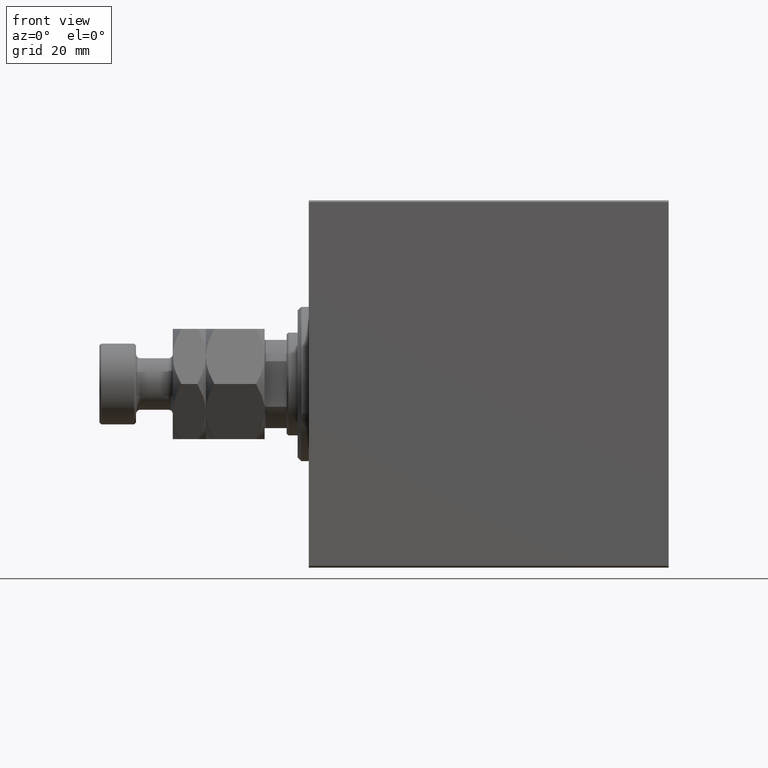
[diagram: clean part render]
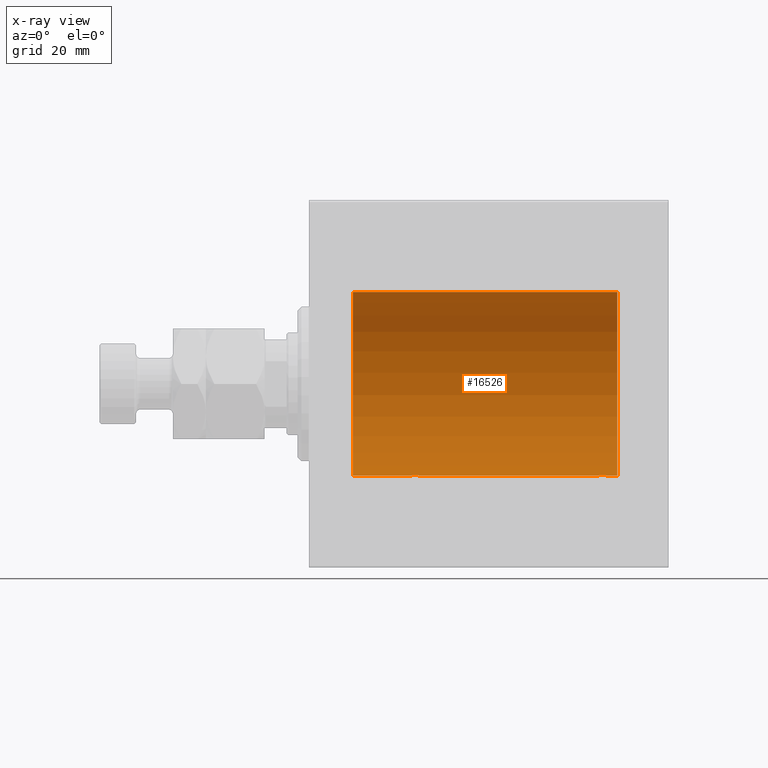
[diagram: x-ray — body ghosted, one internal face saturated and labeled with its STEP entity id]
A machine part, front view, then the same camera in x-ray: the body is ghosted and one INTERNAL B-rep face — a face not visible from any outside direction — is saturated and labeled: STEP entity #16526.
In plain terms, the highlighted cylindrical surface (partial cylindrical patch) has radius 25 mm, axis along (-1, -0, -0).
Its self-contained STEP definition (entity closure, byte-faithful):
#734 = VERTEX_POINT ( 'NONE', #41203 ) ;
#1446 = CARTESIAN_POINT ( 'NONE',  ( 77.75348321179131972, 1.109060198064595548, -24.97584694923137505 ) ) ;
#1668 = CARTESIAN_POINT ( 'NONE',  ( 80.80463913299813328, 2.372637051600627878, -24.88723676875458679 ) ) ;
#1895 = CARTESIAN_POINT ( 'NONE',  ( 79.35083484000675469, 2.419847904056434462, -24.88263203448060423 ) ) ;
#2258 = EDGE_LOOP ( 'NONE', ( #29185, #19840, #42174, #20259, #5530, #35871, #33357, #22043 ) ) ;
#2446 = B_SPLINE_CURVE_WITH_KNOTS ( 'NONE', 3,
 ( #27105, #15765, #20159, #37079, #41004, #1446, #44468, #9517, #29676, #26659, #19475, #43776, #12061, #44005, #1895, #26191, #15998, #9285, #40328, #8612, #1668, #37301, #37532, #5822, #41695, #21083, #17152, #24777, #38474, #34535, #6751, #44927, #42376, #23866 ),
 .UNSPECIFIED., .F., .F.,
 ( 4, 2, 2, 2, 2, 2, 2, 2, 2, 2, 2, 2, 2, 2, 2, 2, 4 ),
 ( 2.479143365900102323E-19, 0.0004888140276038942808, 0.0009776280552077883448, 0.001466442082811682300, 0.001955256110415576690, 0.002444070138019470862, 0.002932884165623364601, 0.003421698193227258773, 0.003910512220831152512, 0.004399326248435046251, 0.004888140276038940857, 0.005376954303642834596, 0.005865768331246728334, 0.006354582358850622940, 0.006843396386454516679, 0.007332210414058411285, 0.007821024441662305024 ),
 .UNSPECIFIED. ) ;
#3011 = CARTESIAN_POINT ( 'NONE',  ( 30.98758834612092983, 1.525124164792372561, -24.95380474534676907 ) ) ;
#3230 = CARTESIAN_POINT ( 'NONE',  ( 31.16861818252479921, 1.254434665533507687, -24.96887599906795785 ) ) ;
#3459 = CARTESIAN_POINT ( 'NONE',  ( 26.50000000000000355, 0.1652919547268403011, -25.00000000000000711 ) ) ;
#3558 = VECTOR ( 'NONE', #29539, 1000.000000000000000 ) ;
#4239 = EDGE_CURVE ( 'NONE', #5942, #30397, #9176, .T. ) ;
#4330 = CIRCLE ( 'NONE', #30217, 25.00000000000000000 ) ;
#5530 = ORIENTED_EDGE ( 'NONE', *, *, #40091, .F. ) ;
#5822 = CARTESIAN_POINT ( 'NONE',  ( 81.52450344187180065, 1.988066470813644182, -24.92099187803979987 ) ) ;
#5942 = VERTEX_POINT ( 'NONE', #21436 ) ;
#6643 = VECTOR ( 'NONE', #42683, 1000.000000000000000 ) ;
#6715 = CARTESIAN_POINT ( 'NONE',  ( 31.50000000000000711, 0.1632133729155560153, -25.00000000000000355 ) ) ;
#6751 = CARTESIAN_POINT ( 'NONE',  ( 82.41966436084116765, 0.6495680347195872395, -24.99207398768918864 ) ) ;
#6934 = CARTESIAN_POINT ( 'NONE',  ( 28.83592030623262659, 2.499940606140140797, -24.87469189697262095 ) ) ;
#7116 = CARTESIAN_POINT ( 'NONE',  ( 84.00000000000000000, 3.061616997868382254E-15, -25.00000000000000000 ) ) ;
#7159 = CARTESIAN_POINT ( 'NONE',  ( 26.50000000000000355, -1.030486103406027476E-15, -25.00000000000000000 ) ) ;
#8113 = EDGE_CURVE ( 'NONE', #20990, #34215, #30083, .T. ) ;
#8452 = AXIS2_PLACEMENT_3D ( 'NONE', #13217, #30139, #9287 ) ;
#8612 = CARTESIAN_POINT ( 'NONE',  ( 80.64874342732643697, 2.419890192637117021, -24.88262770889312847 ) ) ;
#9176 = CIRCLE ( 'NONE', #8452, 25.00000000000000000 ) ;
#9285 = CARTESIAN_POINT ( 'NONE',  ( 80.16226476613384477, 2.500059064463608038, -24.87467999146395314 ) ) ;
#9287 = DIRECTION ( 'NONE',  ( 0.000000000000000000, 0.000000000000000000, 1.000000000000000000 ) ) ;
#9517 = CARTESIAN_POINT ( 'NONE',  ( 78.01175333178062488, 1.524323445682830958, -24.95385641887458661 ) ) ;
#9939 = CARTESIAN_POINT ( 'NONE',  ( 29.64874342732638368, 2.419890192637123683, -24.88262770889313913 ) ) ;
#10130 = LINE ( 'NONE', #7116, #42084 ) ;
#10173 = CARTESIAN_POINT ( 'NONE',  ( 31.50000000000000000, 3.061616978460191625E-15, -25.00000000000000000 ) ) ;
#12061 = CARTESIAN_POINT ( 'NONE',  ( 78.89234004476098505, 2.247131495942870316, -24.89888190765473297 ) ) ;
#13217 = CARTESIAN_POINT ( 'NONE',  ( 11.99999999999999645, 0.000000000000000000, 0.000000000000000000 ) ) ;
#13414 = CARTESIAN_POINT ( 'NONE',  ( 30.52450344187178644, 1.988066470813645514, -24.92099187803979987 ) ) ;
#13637 = CARTESIAN_POINT ( 'NONE',  ( 26.57980964520840672, 0.6474866336855760185, -24.99212517028518121 ) ) ;
#13869 = CARTESIAN_POINT ( 'NONE',  ( 27.34785002149174815, 1.883339088673198214, -24.92922739080161065 ) ) ;
#13873 = DIRECTION ( 'NONE',  ( -1.000000000000000000, 0.000000000000000000, 0.000000000000000000 ) ) ;
#13903 = CARTESIAN_POINT ( 'NONE',  ( 26.50000000000000355, -1.030486103406027476E-15, -25.00000000000000000 ) ) ;
#14098 = CARTESIAN_POINT ( 'NONE',  ( 29.16226476613383056, 2.500059064463610703, -24.87467999146394959 ) ) ;
#15311 = FACE_OUTER_BOUND ( 'NONE', #2258, .T. ) ;
#15406 = CARTESIAN_POINT ( 'NONE',  ( 84.00000000000000000, 0.000000000000000000, 25.00000000000000000 ) ) ;
#15765 = CARTESIAN_POINT ( 'NONE',  ( 77.50000000000000000, 0.1652919547268409395, -25.00000000000000711 ) ) ;
#15998 = CARTESIAN_POINT ( 'NONE',  ( 79.83592030623263724, 2.499940606140138133, -24.87469189697262095 ) ) ;
#16123 = VECTOR ( 'NONE', #20195, 1000.000000000000000 ) ;
#16526 = ADVANCED_FACE ( 'NONE', ( #15311 ), #36399, .F. ) ;
#17117 = CARTESIAN_POINT ( 'NONE',  ( 28.67362550772655894, 2.484060984458447141, -24.87630362147113772 ) ) ;
#17152 = CARTESIAN_POINT ( 'NONE',  ( 81.98758834612091562, 1.525124164792374115, -24.95380474534676907 ) ) ;
#17565 = CARTESIAN_POINT ( 'NONE',  ( 26.51623131730843141, 0.3278008924763859966, -24.99836206720143750 ) ) ;
#17701 = LINE ( 'NONE', #28343, #6643 ) ;
#19475 = CARTESIAN_POINT ( 'NONE',  ( 78.47366496487659049, 1.986787236855545036, -24.92109717386378165 ) ) ;
#19840 = ORIENTED_EDGE ( 'NONE', *, *, #39109, .F. ) ;
#20159 = CARTESIAN_POINT ( 'NONE',  ( 77.51623131730845273, 0.3278008924763873844, -24.99836206720143750 ) ) ;
#20195 = DIRECTION ( 'NONE',  ( -1.000000000000000000, -0.000000000000000000, -0.000000000000000000 ) ) ;
#20259 = ORIENTED_EDGE ( 'NONE', *, *, #4239, .T. ) ;
#20506 = AXIS2_PLACEMENT_3D ( 'NONE', #22721, #35936, #44008 ) ;
#20591 = CARTESIAN_POINT ( 'NONE',  ( 30.65075206354793380, 1.884745564839657828, -24.92912799315484662 ) ) ;
#20758 = CARTESIAN_POINT ( 'NONE',  ( 82.50000000000001421, 3.061616978466502512E-15, -25.00000000000000000 ) ) ;
#20825 = CARTESIAN_POINT ( 'NONE',  ( 28.35083484000673693, 2.419847904056438459, -24.88263203448060423 ) ) ;
#20990 = VERTEX_POINT ( 'NONE', #13903 ) ;
#21083 = CARTESIAN_POINT ( 'NONE',  ( 81.88423301929988440, 1.651337078997087593, -24.94567646296264485 ) ) ;
#21271 = CARTESIAN_POINT ( 'NONE',  ( 26.75348321179130195, 1.109060198064592440, -24.97584694923138215 ) ) ;
#21436 = CARTESIAN_POINT ( 'NONE',  ( 11.99999999999999645, 0.000000000000000000, 25.00000000000000000 ) ) ;
#22043 = ORIENTED_EDGE ( 'NONE', *, *, #28382, .T. ) ;
#22721 = CARTESIAN_POINT ( 'NONE',  ( 84.00000000000000000, 0.000000000000000000, 0.000000000000000000 ) ) ;
#22791 = EDGE_CURVE ( 'NONE', #734, #5942, #39965, .T. ) ;
#23660 = CARTESIAN_POINT ( 'NONE',  ( 31.24692376408954075, 1.108237982093038587, -24.97588368351298627 ) ) ;
#23828 = CARTESIAN_POINT ( 'NONE',  ( 27.74695886470063400, 2.169541443998013630, -24.90585268157804677 ) ) ;
#23866 = CARTESIAN_POINT ( 'NONE',  ( 82.50000000000001421, 3.061616978466502512E-15, -25.00000000000000000 ) ) ;
#23896 = LINE ( 'NONE', #44963, #16123 ) ;
#24518 = CARTESIAN_POINT ( 'NONE',  ( 30.25371533481192543, 2.169035936979791135, -24.90589343070811168 ) ) ;
#24777 = CARTESIAN_POINT ( 'NONE',  ( 82.16861818252479566, 1.254434665533510129, -24.96887599906795785 ) ) ;
#26191 = CARTESIAN_POINT ( 'NONE',  ( 79.67362550772655538, 2.484060984458443588, -24.87630362147113772 ) ) ;
#26564 = VERTEX_POINT ( 'NONE', #28182 ) ;
#26659 = CARTESIAN_POINT ( 'NONE',  ( 78.34785002149173749, 1.883339088673193329, -24.92922739080161065 ) ) ;
#26973 = EDGE_CURVE ( 'NONE', #26564, #34215, #17701, .T. ) ;
#27105 = CARTESIAN_POINT ( 'NONE',  ( 77.50000000000001421, -1.022092533403706378E-15, -25.00000000000000000 ) ) ;
#27481 = CARTESIAN_POINT ( 'NONE',  ( 84.00000000000000000, 3.061616997868382254E-15, -25.00000000000000000 ) ) ;
#27709 = CARTESIAN_POINT ( 'NONE',  ( 11.99999999999999645, 3.061616997868382254E-15, -25.00000000000000000 ) ) ;
#27770 = CARTESIAN_POINT ( 'NONE',  ( 31.41966436084114989, 0.6495680347195871285, -24.99207398768918864 ) ) ;
#28004 = CARTESIAN_POINT ( 'NONE',  ( 27.47366496487658338, 1.986787236855548144, -24.92109717386378165 ) ) ;
#28008 = DIRECTION ( 'NONE',  ( 0.000000000000000000, 0.000000000000000000, 1.000000000000000000 ) ) ;
#28182 = CARTESIAN_POINT ( 'NONE',  ( 77.50000000000001421, -1.022092533403706378E-15, -25.00000000000000000 ) ) ;
#28225 = CARTESIAN_POINT ( 'NONE',  ( 29.32801772275002605, 2.483775543901343585, -24.87633190989611265 ) ) ;
#28343 = CARTESIAN_POINT ( 'NONE',  ( 84.00000000000000000, 3.061616997868382254E-15, -25.00000000000000000 ) ) ;
#28382 = EDGE_CURVE ( 'NONE', #26564, #29505, #2446, .T. ) ;
#29185 = ORIENTED_EDGE ( 'NONE', *, *, #37124, .F. ) ;
#29505 = VERTEX_POINT ( 'NONE', #20758 ) ;
#29539 = DIRECTION ( 'NONE',  ( -1.000000000000000000, -0.000000000000000000, -0.000000000000000000 ) ) ;
#29676 = CARTESIAN_POINT ( 'NONE',  ( 78.11730287024110453, 1.652881481536629948, -24.94556728625771669 ) ) ;
#30083 = B_SPLINE_CURVE_WITH_KNOTS ( 'NONE', 3,
 ( #7159, #3459, #17565, #13637, #34737, #21271, #37957, #31476, #44891, #13869, #28004, #23828, #35176, #34958, #20825, #17117, #6934, #14098, #28225, #9939, #45136, #41657, #24518, #13414, #20591, #31709, #3011, #3230, #23660, #31025, #27770, #42121, #6715, #10173 ),
 .UNSPECIFIED., .F., .F.,
 ( 4, 2, 2, 2, 2, 2, 2, 2, 2, 2, 2, 2, 2, 2, 2, 2, 4 ),
 ( 6.360548730919160171E-19, 0.0004888140276038948229, 0.0009776280552077889954, 0.001466442082811683168, 0.001955256110415577123, 0.002444070138019471296, 0.002932884165623365468, 0.003421698193227259641, 0.003910512220831154247, 0.004399326248435047985, 0.004888140276038942592, 0.005376954303642837198, 0.005865768331246730936, 0.006354582358850624675, 0.006843396386454519281, 0.007332210414058413887, 0.007821024441662306759 ),
 .UNSPECIFIED. ) ;
#30139 = DIRECTION ( 'NONE',  ( -1.000000000000000000, 0.000000000000000000, 0.000000000000000000 ) ) ;
#30217 = AXIS2_PLACEMENT_3D ( 'NONE', #31482, #13873, #28008 ) ;
#30397 = VERTEX_POINT ( 'NONE', #27709 ) ;
#30800 = VERTEX_POINT ( 'NONE', #27481 ) ;
#31025 = CARTESIAN_POINT ( 'NONE',  ( 31.37237109198581209, 0.8054273576766391995, -24.98748174524255461 ) ) ;
#31476 = CARTESIAN_POINT ( 'NONE',  ( 27.01175333178059290, 1.524323445682838285, -24.95385641887458661 ) ) ;
#31482 = CARTESIAN_POINT ( 'NONE',  ( 84.00000000000000000, 0.000000000000000000, 0.000000000000000000 ) ) ;
#31709 = CARTESIAN_POINT ( 'NONE',  ( 30.88423301929986664, 1.651337078997084484, -24.94567646296264485 ) ) ;
#31892 = DIRECTION ( 'NONE',  ( -1.000000000000000000, -0.000000000000000000, -0.000000000000000000 ) ) ;
#33357 = ORIENTED_EDGE ( 'NONE', *, *, #26973, .F. ) ;
#34215 = VERTEX_POINT ( 'NONE', #43655 ) ;
#34535 = CARTESIAN_POINT ( 'NONE',  ( 82.37237109198585472, 0.8054273576766400877, -24.98748174524255461 ) ) ;
#34737 = CARTESIAN_POINT ( 'NONE',  ( 26.62793608542407853, 0.8063280894284498013, -24.98745245851526064 ) ) ;
#34958 = CARTESIAN_POINT ( 'NONE',  ( 28.19316411112866660, 2.371819214216752680, -24.88731391344728294 ) ) ;
#35176 = CARTESIAN_POINT ( 'NONE',  ( 27.89234004476097439, 2.247131495942869872, -24.89888190765473297 ) ) ;
#35871 = ORIENTED_EDGE ( 'NONE', *, *, #8113, .T. ) ;
#35936 = DIRECTION ( 'NONE',  ( -1.000000000000000000, -0.000000000000000000, -0.000000000000000000 ) ) ;
#36399 = CYLINDRICAL_SURFACE ( 'NONE', #20506, 25.00000000000000000 ) ;
#37079 = CARTESIAN_POINT ( 'NONE',  ( 77.57980964520839962, 0.6474866336855770177, -24.99212517028518121 ) ) ;
#37124 = EDGE_CURVE ( 'NONE', #30800, #29505, #23896, .T. ) ;
#37301 = CARTESIAN_POINT ( 'NONE',  ( 81.10745236819801107, 2.247309494740953095, -24.89886665287248135 ) ) ;
#37532 = CARTESIAN_POINT ( 'NONE',  ( 81.25371533481192898, 2.169035936979788470, -24.90589343070811168 ) ) ;
#37957 = CARTESIAN_POINT ( 'NONE',  ( 26.83029543590130928, 1.252624798282894192, -24.96896960740658500 ) ) ;
#38474 = CARTESIAN_POINT ( 'NONE',  ( 82.24692376408954431, 1.108237982093040142, -24.97588368351298627 ) ) ;
#39109 = EDGE_CURVE ( 'NONE', #734, #30800, #4330, .T. ) ;
#39965 = LINE ( 'NONE', #15406, #3558 ) ;
#40091 = EDGE_CURVE ( 'NONE', #20990, #30397, #10130, .T. ) ;
#40328 = CARTESIAN_POINT ( 'NONE',  ( 80.32801772275007579, 2.483775543901338700, -24.87633190989611265 ) ) ;
#41004 = CARTESIAN_POINT ( 'NONE',  ( 77.62793608542409629, 0.8063280894284527989, -24.98745245851526064 ) ) ;
#41203 = CARTESIAN_POINT ( 'NONE',  ( 84.00000000000000000, 0.000000000000000000, 25.00000000000000000 ) ) ;
#41657 = CARTESIAN_POINT ( 'NONE',  ( 30.10745236819796844, 2.247309494740955316, -24.89886665287248135 ) ) ;
#41695 = CARTESIAN_POINT ( 'NONE',  ( 81.65075206354792670, 1.884745564839660492, -24.92912799315484662 ) ) ;
#42084 = VECTOR ( 'NONE', #31892, 1000.000000000000000 ) ;
#42121 = CARTESIAN_POINT ( 'NONE',  ( 31.48364115014310727, 0.3289998300458058522, -24.99834914448732448 ) ) ;
#42174 = ORIENTED_EDGE ( 'NONE', *, *, #22791, .T. ) ;
#42376 = CARTESIAN_POINT ( 'NONE',  ( 82.50000000000001421, 0.1632133729155562929, -25.00000000000000355 ) ) ;
#42683 = DIRECTION ( 'NONE',  ( -1.000000000000000000, -0.000000000000000000, -0.000000000000000000 ) ) ;
#43655 = CARTESIAN_POINT ( 'NONE',  ( 31.50000000000000000, 3.061616978460191625E-15, -25.00000000000000000 ) ) ;
#43776 = CARTESIAN_POINT ( 'NONE',  ( 78.74695886470065886, 2.169541443998010966, -24.90585268157804677 ) ) ;
#44005 = CARTESIAN_POINT ( 'NONE',  ( 79.19316411112868082, 2.371819214216751792, -24.88731391344728294 ) ) ;
#44008 = DIRECTION ( 'NONE',  ( 0.000000000000000000, 0.000000000000000000, 1.000000000000000000 ) ) ;
#44468 = CARTESIAN_POINT ( 'NONE',  ( 77.83029543590133414, 1.252624798282886198, -24.96896960740658500 ) ) ;
#44891 = CARTESIAN_POINT ( 'NONE',  ( 27.11730287024108677, 1.652881481536635055, -24.94556728625771669 ) ) ;
#44927 = CARTESIAN_POINT ( 'NONE',  ( 82.48364115014311437, 0.3289998300458050196, -24.99834914448732448 ) ) ;
#44963 = CARTESIAN_POINT ( 'NONE',  ( 84.00000000000000000, 3.061616997868382254E-15, -25.00000000000000000 ) ) ;
#45136 = CARTESIAN_POINT ( 'NONE',  ( 29.80463913299814749, 2.372637051600631874, -24.88723676875459034 ) ) ;